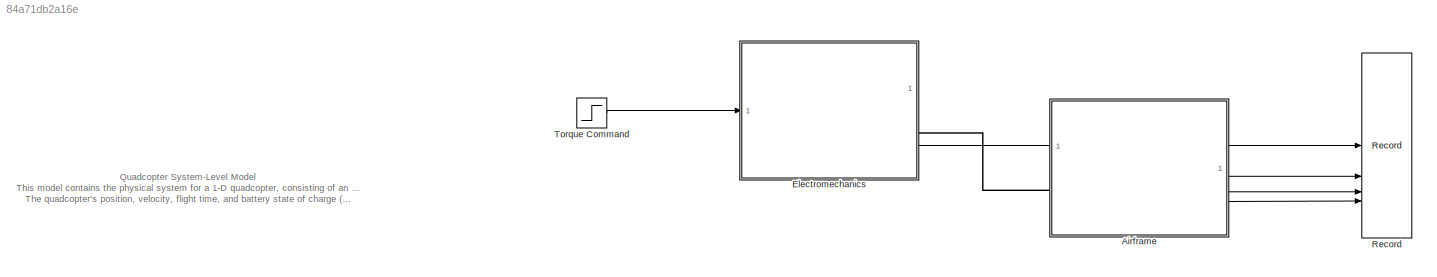
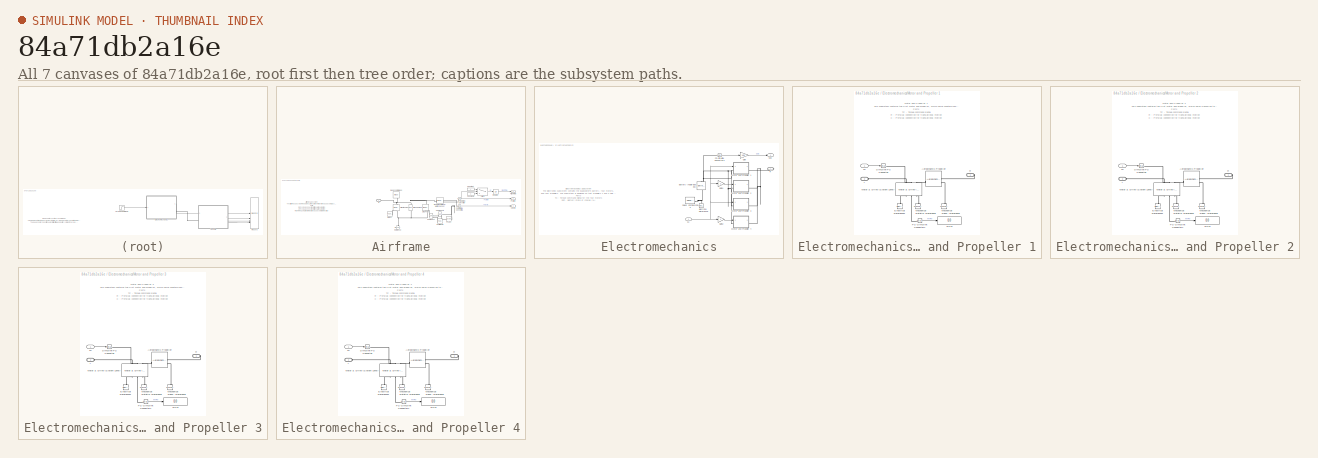
[diagram: thumbnail index - all 7 canvases of the model, root first then tree order]
MODEL slx_84a71db2a16e
KIND model
CONFIG AbsTol = auto
CONFIG EnableMultiTasking = off
CONFIG FixedStep = auto
CONFIG MaxStep = auto
CONFIG MinStep = auto
CONFIG RelTol = 1e-3
CONFIG SampleTimeConstraint = Unconstrained
CONFIG SolverName = VariableStepAuto
CONFIG StartTime = 0.0
CONFIG StopTime = 60
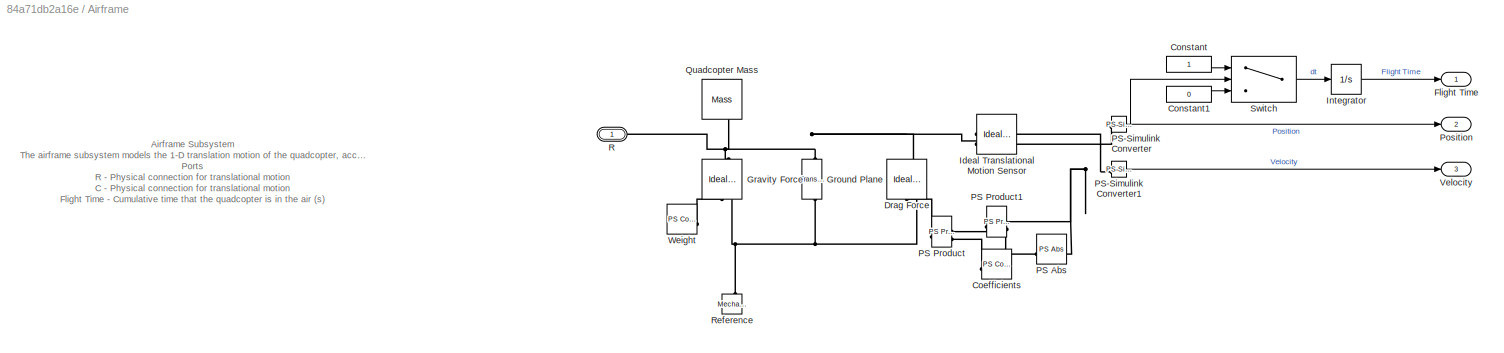
BLOCK [SubSystem] Airframe
BLOCK [Reference] Airframe/Coefficients  REF=fl_lib/Physical Signals/Sources/PS Constant
  SourceBlock = fl_lib/Physical Signals/Sources/PS Constant
  SourceType = PS Constant
BLOCK [Constant] Airframe/Constant
BLOCK [Constant] Airframe/Constant1
  Value = 0
BLOCK [Reference] Airframe/Drag Force  REF=fl_lib/Mechanical/Mechanical Sources/Ideal Force Source
  NameLocation = right
  SourceBlock = fl_lib/Mechanical/Mechanical Sources/Ideal Force Source
  SourceType = Ideal Force Source
BLOCK [Outport] Airframe/Flight Time
BLOCK [Reference] Airframe/Gravity Force  REF=fl_lib/Mechanical/Mechanical Sources/Ideal Force Source
  NameLocation = right
  SourceBlock = fl_lib/Mechanical/Mechanical Sources/Ideal Force Source
  SourceType = Ideal Force Source
BLOCK [Reference] Airframe/Ground Plane  REF=fl_lib/Mechanical/Translational
Elements/Translational Hard
Stop
  NameLocation = right
  SourceBlock = fl_lib/Mechanical/Translational\nElements/Translational Hard\nStop
  SourceType = Translational Hard\nStop
BLOCK [Reference] Airframe/Ideal Translational Motion Sensor   REF=fl_lib/Mechanical/Mechanical Sensors/Ideal Translational
Motion Sensor
  NameLocation = top
  SourceBlock = fl_lib/Mechanical/Mechanical Sensors/Ideal Translational\nMotion Sensor
  SourceType = Ideal Translational\nMotion Sensor
BLOCK [Integrator] Airframe/Integrator
BLOCK [Reference] Airframe/PS Abs  REF=fl_lib/Physical Signals/Nonlinear Operators/PS Abs
  SourceBlock = fl_lib/Physical Signals/Nonlinear Operators/PS Abs
  SourceType = PS Abs
BLOCK [Reference] Airframe/PS Product  REF=fl_lib/Physical Signals/Functions/PS Product
  SourceBlock = fl_lib/Physical Signals/Functions/PS Product
  SourceType = PS Product
BLOCK [Reference] Airframe/PS Product1  REF=fl_lib/Physical Signals/Functions/PS Product
  SourceBlock = fl_lib/Physical Signals/Functions/PS Product
  SourceType = PS Product
BLOCK [Reference] Airframe/PS-Simulink Converter  REF=nesl_utility/PS-Simulink
Converter
  SourceBlock = nesl_utility/PS-Simulink\nConverter
  SourceType = PS-Simulink\nConverter
BLOCK [Reference] Airframe/PS-Simulink Converter1  REF=nesl_utility/PS-Simulink
Converter
  SourceBlock = nesl_utility/PS-Simulink\nConverter
  SourceType = PS-Simulink\nConverter
BLOCK [Outport] Airframe/Position
  Port = 2
BLOCK [Reference] Airframe/Quadcopter Mass  REF=fl_lib/Mechanical/Translational
Elements/Mass
  NameLocation = left
  SourceBlock = fl_lib/Mechanical/Translational\nElements/Mass
  SourceType = Mass
BLOCK [PMIOPort] Airframe/R
  Side = Left
BLOCK [Reference] Airframe/Reference  REF=fl_lib/Mechanical/Translational
Elements/Mechanical
Translational
Reference
  NameLocation = right
  SourceBlock = fl_lib/Mechanical/Translational\nElements/Mechanical\nTranslational\nReference
  SourceType = Mechanical\nTranslational\nReference
BLOCK [Switch] Airframe/Switch
  Criteria = u2 > Threshold
  InputSameDT = off
  SaturateOnIntegerOverflow = off
  Threshold = 0.01
BLOCK [Outport] Airframe/Velocity
  Port = 3
BLOCK [Reference] Airframe/Weight  REF=fl_lib/Physical Signals/Sources/PS Constant
  SourceBlock = fl_lib/Physical Signals/Sources/PS Constant
  SourceType = PS Constant
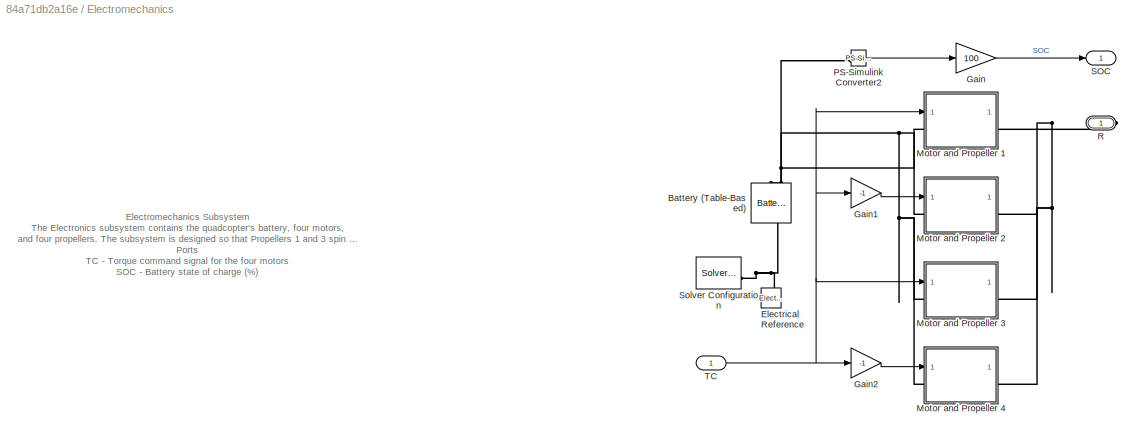
BLOCK [SubSystem] Electromechanics
BLOCK [Reference] Electromechanics/Battery (Table-Based)  REF=batteryecm_lib/Battery
(Table-Based)
  AttributesFormatString = Panasonic:\nNCA593446
  NameLocation = left
  SourceBlock = batteryecm_lib/Battery\n(Table-Based)
  SourceType = Battery\n(Table-Based)
  Tag = {'toolbox/physmod/battery/shared_library/m/batteryecm_lib_parts';'Battery__Table_Based_/Panasonic/NCA593446.xml'}
BLOCK [Reference] Electromechanics/Electrical Reference  REF=fl_lib/Electrical/Electrical Elements/Electrical Reference
  NameLocation = right
  SourceBlock = fl_lib/Electrical/Electrical Elements/Electrical Reference
  SourceType = Electrical Reference
BLOCK [Gain] Electromechanics/Gain
  Gain = 100
BLOCK [Gain] Electromechanics/Gain1
  Gain = -1
BLOCK [Gain] Electromechanics/Gain2
  Gain = -1
BLOCK [SubSystem] Electromechanics/Motor and Propeller 1
BLOCK [PMIOPort] Electromechanics/Motor and Propeller 1/+
  Port = 2
  Side = Left
BLOCK [Reference] Electromechanics/Motor and Propeller 1/Aerodynamic Propeller  REF=sdl_lib/Engines & Motors/Aerodynamic
Propeller
  SourceBlock = sdl_lib/Engines & Motors/Aerodynamic\nPropeller
  SourceType = Aerodynamic\nPropeller
BLOCK [Reference] Electromechanics/Motor and Propeller 1/Electrical Reference1  REF=fl_lib/Electrical/Electrical Elements/Electrical Reference
  NameLocation = right
  SourceBlock = fl_lib/Electrical/Electrical Elements/Electrical Reference
  SourceType = Electrical Reference
BLOCK [Reference] Electromechanics/Motor and Propeller 1/Mechanical Rotational Reference  REF=fl_lib/Mechanical/Rotational Elements/Mechanical
Rotational Reference
  NameLocation = right
  SourceBlock = fl_lib/Mechanical/Rotational Elements/Mechanical\nRotational Reference
  SourceType = Mechanical\nRotational Reference
BLOCK [Reference] Electromechanics/Motor and Propeller 1/Mechanical Translational Reference  REF=fl_lib/Mechanical/Translational
Elements/Mechanical
Translational
Reference
  NameLocation = right
  SourceBlock = fl_lib/Mechanical/Translational\nElements/Mechanical\nTranslational\nReference
  SourceType = Mechanical\nTranslational\nReference
BLOCK [Reference] Electromechanics/Motor and Propeller 1/Motor & Drive (System Level)   REF=ee_lib/Electromechanical/Motor & Drive
(System Level)
  NameLocation = left
  SourceBlock = ee_lib/Electromechanical/Motor & Drive\n(System Level)
  SourceType = Motor & Drive\n(System Level)
BLOCK [Reference] Electromechanics/Motor and Propeller 1/PS-Simulink Converter1  REF=nesl_utility/PS-Simulink
Converter
  SourceBlock = nesl_utility/PS-Simulink\nConverter
  SourceType = PS-Simulink\nConverter
BLOCK [PMIOPort] Electromechanics/Motor and Propeller 1/R
  Side = Right
BLOCK [Display] Electromechanics/Motor and Propeller 1/RPM
  Decimation = 1
BLOCK [Reference] Electromechanics/Motor and Propeller 1/Simulink-PS Converter  REF=nesl_utility/Simulink-PS
Converter
  SourceBlock = nesl_utility/Simulink-PS\nConverter
  SourceType = Simulink-PS\nConverter
BLOCK [Inport] Electromechanics/Motor and Propeller 1/TC
BLOCK [SubSystem] Electromechanics/Motor and Propeller 2
BLOCK [PMIOPort] Electromechanics/Motor and Propeller 2/+
  Port = 2
  Side = Left
BLOCK [Reference] Electromechanics/Motor and Propeller 2/Aerodynamic Propeller  REF=sdl_lib/Engines & Motors/Aerodynamic
Propeller
  SourceBlock = sdl_lib/Engines & Motors/Aerodynamic\nPropeller
  SourceType = Aerodynamic\nPropeller
BLOCK [Reference] Electromechanics/Motor and Propeller 2/Electrical Reference1  REF=fl_lib/Electrical/Electrical Elements/Electrical Reference
  NameLocation = right
  SourceBlock = fl_lib/Electrical/Electrical Elements/Electrical Reference
  SourceType = Electrical Reference
BLOCK [Reference] Electromechanics/Motor and Propeller 2/Mechanical Rotational Reference  REF=fl_lib/Mechanical/Rotational Elements/Mechanical
Rotational Reference
  NameLocation = right
  SourceBlock = fl_lib/Mechanical/Rotational Elements/Mechanical\nRotational Reference
  SourceType = Mechanical\nRotational Reference
BLOCK [Reference] Electromechanics/Motor and Propeller 2/Mechanical Translational Reference  REF=fl_lib/Mechanical/Translational
Elements/Mechanical
Translational
Reference
  NameLocation = right
  SourceBlock = fl_lib/Mechanical/Translational\nElements/Mechanical\nTranslational\nReference
  SourceType = Mechanical\nTranslational\nReference
BLOCK [Reference] Electromechanics/Motor and Propeller 2/Motor & Drive (System Level)   REF=ee_lib/Electromechanical/Motor & Drive
(System Level)
  NameLocation = left
  SourceBlock = ee_lib/Electromechanical/Motor & Drive\n(System Level)
  SourceType = Motor & Drive\n(System Level)
BLOCK [Reference] Electromechanics/Motor and Propeller 2/PS-Simulink Converter1  REF=nesl_utility/PS-Simulink
Converter
  SourceBlock = nesl_utility/PS-Simulink\nConverter
  SourceType = PS-Simulink\nConverter
BLOCK [PMIOPort] Electromechanics/Motor and Propeller 2/R
  Side = Right
BLOCK [Display] Electromechanics/Motor and Propeller 2/RPM
  Decimation = 1
BLOCK [Reference] Electromechanics/Motor and Propeller 2/Simulink-PS Converter  REF=nesl_utility/Simulink-PS
Converter
  SourceBlock = nesl_utility/Simulink-PS\nConverter
  SourceType = Simulink-PS\nConverter
BLOCK [Inport] Electromechanics/Motor and Propeller 2/TC
BLOCK [SubSystem] Electromechanics/Motor and Propeller 3
BLOCK [PMIOPort] Electromechanics/Motor and Propeller 3/+
  Port = 2
  Side = Left
BLOCK [Reference] Electromechanics/Motor and Propeller 3/Aerodynamic Propeller  REF=sdl_lib/Engines & Motors/Aerodynamic
Propeller
  SourceBlock = sdl_lib/Engines & Motors/Aerodynamic\nPropeller
  SourceType = Aerodynamic\nPropeller
BLOCK [Reference] Electromechanics/Motor and Propeller 3/Electrical Reference1  REF=fl_lib/Electrical/Electrical Elements/Electrical Reference
  NameLocation = right
  SourceBlock = fl_lib/Electrical/Electrical Elements/Electrical Reference
  SourceType = Electrical Reference
BLOCK [Reference] Electromechanics/Motor and Propeller 3/Mechanical Rotational Reference  REF=fl_lib/Mechanical/Rotational Elements/Mechanical
Rotational Reference
  NameLocation = right
  SourceBlock = fl_lib/Mechanical/Rotational Elements/Mechanical\nRotational Reference
  SourceType = Mechanical\nRotational Reference
BLOCK [Reference] Electromechanics/Motor and Propeller 3/Mechanical Translational Reference  REF=fl_lib/Mechanical/Translational
Elements/Mechanical
Translational
Reference
  NameLocation = right
  SourceBlock = fl_lib/Mechanical/Translational\nElements/Mechanical\nTranslational\nReference
  SourceType = Mechanical\nTranslational\nReference
BLOCK [Reference] Electromechanics/Motor and Propeller 3/Motor & Drive (System Level)   REF=ee_lib/Electromechanical/Motor & Drive
(System Level)
  NameLocation = left
  SourceBlock = ee_lib/Electromechanical/Motor & Drive\n(System Level)
  SourceType = Motor & Drive\n(System Level)
BLOCK [Reference] Electromechanics/Motor and Propeller 3/PS-Simulink Converter1  REF=nesl_utility/PS-Simulink
Converter
  SourceBlock = nesl_utility/PS-Simulink\nConverter
  SourceType = PS-Simulink\nConverter
BLOCK [PMIOPort] Electromechanics/Motor and Propeller 3/R
  Side = Right
BLOCK [Display] Electromechanics/Motor and Propeller 3/RPM
  Decimation = 1
BLOCK [Reference] Electromechanics/Motor and Propeller 3/Simulink-PS Converter  REF=nesl_utility/Simulink-PS
Converter
  SourceBlock = nesl_utility/Simulink-PS\nConverter
  SourceType = Simulink-PS\nConverter
BLOCK [Inport] Electromechanics/Motor and Propeller 3/TC
BLOCK [SubSystem] Electromechanics/Motor and Propeller 4
BLOCK [PMIOPort] Electromechanics/Motor and Propeller 4/+
  Port = 2
  Side = Left
BLOCK [Reference] Electromechanics/Motor and Propeller 4/Aerodynamic Propeller  REF=sdl_lib/Engines & Motors/Aerodynamic
Propeller
  SourceBlock = sdl_lib/Engines & Motors/Aerodynamic\nPropeller
  SourceType = Aerodynamic\nPropeller
BLOCK [Reference] Electromechanics/Motor and Propeller 4/Electrical Reference1  REF=fl_lib/Electrical/Electrical Elements/Electrical Reference
  NameLocation = right
  SourceBlock = fl_lib/Electrical/Electrical Elements/Electrical Reference
  SourceType = Electrical Reference
BLOCK [Reference] Electromechanics/Motor and Propeller 4/Mechanical Rotational Reference  REF=fl_lib/Mechanical/Rotational Elements/Mechanical
Rotational Reference
  NameLocation = right
  SourceBlock = fl_lib/Mechanical/Rotational Elements/Mechanical\nRotational Reference
  SourceType = Mechanical\nRotational Reference
BLOCK [Reference] Electromechanics/Motor and Propeller 4/Mechanical Translational Reference  REF=fl_lib/Mechanical/Translational
Elements/Mechanical
Translational
Reference
  NameLocation = right
  SourceBlock = fl_lib/Mechanical/Translational\nElements/Mechanical\nTranslational\nReference
  SourceType = Mechanical\nTranslational\nReference
BLOCK [Reference] Electromechanics/Motor and Propeller 4/Motor & Drive (System Level)   REF=ee_lib/Electromechanical/Motor & Drive
(System Level)
  NameLocation = left
  SourceBlock = ee_lib/Electromechanical/Motor & Drive\n(System Level)
  SourceType = Motor & Drive\n(System Level)
BLOCK [Reference] Electromechanics/Motor and Propeller 4/PS-Simulink Converter1  REF=nesl_utility/PS-Simulink
Converter
  SourceBlock = nesl_utility/PS-Simulink\nConverter
  SourceType = PS-Simulink\nConverter
BLOCK [PMIOPort] Electromechanics/Motor and Propeller 4/R
  Side = Right
BLOCK [Display] Electromechanics/Motor and Propeller 4/RPM
  Decimation = 1
BLOCK [Reference] Electromechanics/Motor and Propeller 4/Simulink-PS Converter  REF=nesl_utility/Simulink-PS
Converter
  SourceBlock = nesl_utility/Simulink-PS\nConverter
  SourceType = Simulink-PS\nConverter
BLOCK [Inport] Electromechanics/Motor and Propeller 4/TC
BLOCK [Reference] Electromechanics/PS-Simulink Converter2  REF=nesl_utility/PS-Simulink
Converter
  SourceBlock = nesl_utility/PS-Simulink\nConverter
  SourceType = PS-Simulink\nConverter
BLOCK [PMIOPort] Electromechanics/R
  Side = Right
BLOCK [Outport] Electromechanics/SOC
BLOCK [Reference] Electromechanics/Solver Configuration  REF=nesl_utility/Solver
Configuration
  SourceBlock = nesl_utility/Solver\nConfiguration
  SourceType = Solver\nConfiguration
BLOCK [Inport] Electromechanics/TC
BLOCK [Record] Record
  FileSettingsInternal = {"entries":[{"content":{"excelSettings":{"content":{},"type":"Streamout.ExcelSettings"}},"type":"Streamout.FileSettingStorage","uuid":""}],"packageUris":["http:\/\/schema.mathworks.com\/mf0\/streamout_blocks\/R2020a"],"version":"1.0"}
  SignalsInternal = {"entries":[{"content":{"signals":[{"content":{"blockPath":[],"dimensions":[1,1],"domain":"","lineColor":"#a2142f","plots":[1],"port":1,"signalID":180,"signalName":"SOC"},"type":"RecordBlkView.Signal","uuid":""},{"content":{"blockPath":[],"dimensions":[1,1],"domain":"","lineColor":"#139fff","plots":[1],"port":2,"signalID":183,"signalName":"Flight Time"},"type":"RecordBlkView.Signal","uuid":""},{"c...<+506ch>
  VisualizationBindings = {"sparklinesplugin":{"info":[{"bindingParametersList":[],"subplotID":1}]}}
BLOCK [Step] Torque Command
  After = 0
  Before = 1
  SampleTime = 0
  Time = 30
ANNOTATION (root): Quadcopter System-Level Model This model contains the physical system for a 1-D quadcopter, consisting of an airframe, a battery, four motors, and four propellers. The motors are driven with a torque command signal. The quadcopter's position, velocity, flight time, and battery state of charge (SOC) are measured during simulation.
ANNOTATION Airframe: Airframe Subsystem The airframe subsystem models the 1-D translation motion of the quadcopter, accounting for gravity, air drag, and the ground plane located at position 0. It also computes the total flight time when the quadcopter is at least 1 cm above the ground. Ports R - Physical connection for translational motion C - Physical connection for translational motion Flight Time - Cumulative time...<+144ch>
ANNOTATION Electromechanics: Electromechanics Subsystem The Electronics subsystem contains the quadcopter's battery, four motors, and four propellers. The subsystem is designed so that Propellers 1 and 3 spin counterclockwise and Propellers 2 and 4 spin clockwise. Ports TC - Torque command signal for the four motors SOC - Battery state of charge (%) R - Physical connection for translational motion C - Physical connection for ...<+20ch>
ANNOTATION Electromechanics/Motor and Propeller 1: Motor and Propeller 1 This subsystem contains the first motor and propeller, which spins counterclockwise to generate positive thrust. Ports TC - Torque command signal R - Physical connection for translational motion C - Physical connection for translational motion
ANNOTATION Electromechanics/Motor and Propeller 2: Motor and Propeller 2 This subsystem contains the first motor and propeller, which spins clockwise to generate positive thrust. Ports TC - Torque command signal R - Physical connection for translational motion C - Physical connection for translational motion
ANNOTATION Electromechanics/Motor and Propeller 3: Motor and Propeller 3 This subsystem contains the first motor and propeller, which spins counterclockwise to generate positive thrust. Ports TC - Torque command signal R - Physical connection for translational motion C - Physical connection for translational motion
ANNOTATION Electromechanics/Motor and Propeller 4: Motor and Propeller 4 This subsystem contains the first motor and propeller, which spins clockwise to generate positive thrust. Ports TC - Torque command signal R - Physical connection for translational motion C - Physical connection for translational motion
LINE Airframe/Constant1:1 -> Airframe/Switch:3
LINE Airframe/Constant:1 -> Airframe/Switch:1
LINE Airframe/Integrator:1 -> Airframe/Flight Time:1
LINE Airframe/PS-Simulink Converter1:1 -> Airframe/Velocity:1
NET Airframe/PS-Simulink Converter:1 -> Airframe/Position:1, Airframe/Switch:2
LINE Airframe/Switch:1 -> Airframe/Integrator:1
LINE Airframe:1 -> Record:2
LINE Airframe:2 -> Record:3
LINE Airframe:3 -> Record:4
LINE Electromechanics/Gain1:1 -> Electromechanics/Motor and Propeller 2:1
LINE Electromechanics/Gain2:1 -> Electromechanics/Motor and Propeller 4:1
LINE Electromechanics/Gain:1 -> Electromechanics/SOC:1
LINE Electromechanics/Motor and Propeller 1/PS-Simulink Converter1:1 -> Electromechanics/Motor and Propeller 1/RPM:1
LINE Electromechanics/Motor and Propeller 1/TC:1 -> Electromechanics/Motor and Propeller 1/Simulink-PS Converter:1
LINE Electromechanics/Motor and Propeller 2/PS-Simulink Converter1:1 -> Electromechanics/Motor and Propeller 2/RPM:1
LINE Electromechanics/Motor and Propeller 2/TC:1 -> Electromechanics/Motor and Propeller 2/Simulink-PS Converter:1
LINE Electromechanics/Motor and Propeller 3/PS-Simulink Converter1:1 -> Electromechanics/Motor and Propeller 3/RPM:1
LINE Electromechanics/Motor and Propeller 3/TC:1 -> Electromechanics/Motor and Propeller 3/Simulink-PS Converter:1
LINE Electromechanics/Motor and Propeller 4/PS-Simulink Converter1:1 -> Electromechanics/Motor and Propeller 4/RPM:1
LINE Electromechanics/Motor and Propeller 4/TC:1 -> Electromechanics/Motor and Propeller 4/Simulink-PS Converter:1
LINE Electromechanics/PS-Simulink Converter2:1 -> Electromechanics/Gain:1
NET Electromechanics/TC:1 -> Electromechanics/Gain1:1, Electromechanics/Gain2:1, Electromechanics/Motor and Propeller 1:1, Electromechanics/Motor and Propeller 3:1
LINE Electromechanics:1 -> Record:1
LINE Torque Command:1 -> Electromechanics:1
PLINE Airframe/Coefficients:RConn1 -- Airframe/PS Product:LConn2
PNET net1: Airframe/Drag Force:LConn1 -- Airframe/Gravity Force:LConn1 -- Airframe/Ground Plane:LConn1 -- Airframe/Ideal Translational Motion Sensor :LConn1 -- Airframe/Quadcopter Mass:LConn1 -- Airframe/R:RConn1
PLINE Airframe/Drag Force:RConn1 -- Airframe/PS Product:RConn1
PNET net2: Airframe/Drag Force:RConn2 -- Airframe/Gravity Force:RConn2 -- Airframe/Ground Plane:RConn1 -- Airframe/Reference:LConn1
PLINE Airframe/Gravity Force:RConn1 -- Airframe/Weight:RConn1
PNET net3: Airframe/Ideal Translational Motion Sensor :RConn1 -- Airframe/PS Abs:LConn1 -- Airframe/PS Product1:LConn1 -- Airframe/PS-Simulink Converter1:LConn1
PLINE Airframe/Ideal Translational Motion Sensor :RConn2 -- Airframe/PS-Simulink Converter:LConn1
PLINE Airframe/PS Abs:RConn1 -- Airframe/PS Product1:LConn2
PLINE Airframe/PS Product1:RConn1 -- Airframe/PS Product:LConn1
PLINE Airframe:LConn1 -- Electromechanics:RConn1
PNET net4: Electromechanics/Battery (Table-Based):LConn1 -- Electromechanics/Motor and Propeller 1:LConn1 -- Electromechanics/Motor and Propeller 2:LConn1 -- Electromechanics/Motor and Propeller 3:LConn1 -- Electromechanics/Motor and Propeller 4:LConn1
PLINE Electromechanics/Battery (Table-Based):LConn2 -- Electromechanics/PS-Simulink Converter2:LConn1
PNET net5: Electromechanics/Battery (Table-Based):RConn1 -- Electromechanics/Electrical Reference:LConn1 -- Electromechanics/Solver Configuration:RConn1
PLINE Electromechanics/Motor and Propeller 1/+:RConn1 -- Electromechanics/Motor and Propeller 1/Motor & Drive (System Level) :LConn1
PLINE Electromechanics/Motor and Propeller 1/Aerodynamic Propeller:LConn1 -- Electromechanics/Motor and Propeller 1/Motor & Drive (System Level) :LConn3
PLINE Electromechanics/Motor and Propeller 1/Aerodynamic Propeller:RConn1 -- Electromechanics/Motor and Propeller 1/R:RConn1
PLINE Electromechanics/Motor and Propeller 1/Aerodynamic Propeller:RConn2 -- Electromechanics/Motor and Propeller 1/Mechanical Translational Reference:LConn1
PLINE Electromechanics/Motor and Propeller 1/Electrical Reference1:LConn1 -- Electromechanics/Motor and Propeller 1/Motor & Drive (System Level) :RConn1
PLINE Electromechanics/Motor and Propeller 1/Mechanical Rotational Reference:LConn1 -- Electromechanics/Motor and Propeller 1/Motor & Drive (System Level) :RConn3
PLINE Electromechanics/Motor and Propeller 1/Motor & Drive (System Level) :LConn2 -- Electromechanics/Motor and Propeller 1/Simulink-PS Converter:RConn1
PLINE Electromechanics/Motor and Propeller 1/Motor & Drive (System Level) :RConn2 -- Electromechanics/Motor and Propeller 1/PS-Simulink Converter1:LConn1
PNET net6: Electromechanics/Motor and Propeller 1:RConn1 -- Electromechanics/Motor and Propeller 2:RConn1 -- Electromechanics/Motor and Propeller 3:RConn1 -- Electromechanics/Motor and Propeller 4:RConn1 -- Electromechanics/R:RConn1
PLINE Electromechanics/Motor and Propeller 2/+:RConn1 -- Electromechanics/Motor and Propeller 2/Motor & Drive (System Level) :LConn1
PLINE Electromechanics/Motor and Propeller 2/Aerodynamic Propeller:LConn1 -- Electromechanics/Motor and Propeller 2/Motor & Drive (System Level) :LConn3
PLINE Electromechanics/Motor and Propeller 2/Aerodynamic Propeller:RConn1 -- Electromechanics/Motor and Propeller 2/R:RConn1
PLINE Electromechanics/Motor and Propeller 2/Aerodynamic Propeller:RConn2 -- Electromechanics/Motor and Propeller 2/Mechanical Translational Reference:LConn1
PLINE Electromechanics/Motor and Propeller 2/Electrical Reference1:LConn1 -- Electromechanics/Motor and Propeller 2/Motor & Drive (System Level) :RConn1
PLINE Electromechanics/Motor and Propeller 2/Mechanical Rotational Reference:LConn1 -- Electromechanics/Motor and Propeller 2/Motor & Drive (System Level) :RConn3
PLINE Electromechanics/Motor and Propeller 2/Motor & Drive (System Level) :LConn2 -- Electromechanics/Motor and Propeller 2/Simulink-PS Converter:RConn1
PLINE Electromechanics/Motor and Propeller 2/Motor & Drive (System Level) :RConn2 -- Electromechanics/Motor and Propeller 2/PS-Simulink Converter1:LConn1
PLINE Electromechanics/Motor and Propeller 3/+:RConn1 -- Electromechanics/Motor and Propeller 3/Motor & Drive (System Level) :LConn1
PLINE Electromechanics/Motor and Propeller 3/Aerodynamic Propeller:LConn1 -- Electromechanics/Motor and Propeller 3/Motor & Drive (System Level) :LConn3
PLINE Electromechanics/Motor and Propeller 3/Aerodynamic Propeller:RConn1 -- Electromechanics/Motor and Propeller 3/R:RConn1
PLINE Electromechanics/Motor and Propeller 3/Aerodynamic Propeller:RConn2 -- Electromechanics/Motor and Propeller 3/Mechanical Translational Reference:LConn1
PLINE Electromechanics/Motor and Propeller 3/Electrical Reference1:LConn1 -- Electromechanics/Motor and Propeller 3/Motor & Drive (System Level) :RConn1
PLINE Electromechanics/Motor and Propeller 3/Mechanical Rotational Reference:LConn1 -- Electromechanics/Motor and Propeller 3/Motor & Drive (System Level) :RConn3
PLINE Electromechanics/Motor and Propeller 3/Motor & Drive (System Level) :LConn2 -- Electromechanics/Motor and Propeller 3/Simulink-PS Converter:RConn1
PLINE Electromechanics/Motor and Propeller 3/Motor & Drive (System Level) :RConn2 -- Electromechanics/Motor and Propeller 3/PS-Simulink Converter1:LConn1
PLINE Electromechanics/Motor and Propeller 4/+:RConn1 -- Electromechanics/Motor and Propeller 4/Motor & Drive (System Level) :LConn1
PLINE Electromechanics/Motor and Propeller 4/Aerodynamic Propeller:LConn1 -- Electromechanics/Motor and Propeller 4/Motor & Drive (System Level) :LConn3
PLINE Electromechanics/Motor and Propeller 4/Aerodynamic Propeller:RConn1 -- Electromechanics/Motor and Propeller 4/R:RConn1
PLINE Electromechanics/Motor and Propeller 4/Aerodynamic Propeller:RConn2 -- Electromechanics/Motor and Propeller 4/Mechanical Translational Reference:LConn1
PLINE Electromechanics/Motor and Propeller 4/Electrical Reference1:LConn1 -- Electromechanics/Motor and Propeller 4/Motor & Drive (System Level) :RConn1
PLINE Electromechanics/Motor and Propeller 4/Mechanical Rotational Reference:LConn1 -- Electromechanics/Motor and Propeller 4/Motor & Drive (System Level) :RConn3
PLINE Electromechanics/Motor and Propeller 4/Motor & Drive (System Level) :LConn2 -- Electromechanics/Motor and Propeller 4/Simulink-PS Converter:RConn1
PLINE Electromechanics/Motor and Propeller 4/Motor & Drive (System Level) :RConn2 -- Electromechanics/Motor and Propeller 4/PS-Simulink Converter1:LConn1
note: NET lines group one-source signal fan-out (src -> all destinations, sorted); 1:1 wires keep LINE; PNET lines group multi-terminal physical nets as a canonical sorted terminal list (undirected conserving connections); 2-terminal nets keep the pairwise PLINE form
